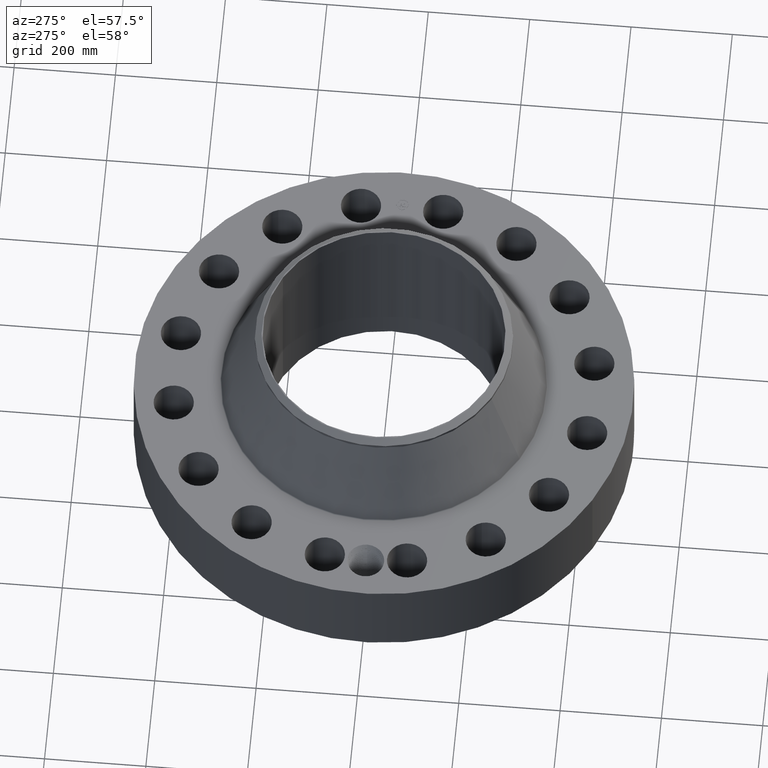
[diagram: clean part render]
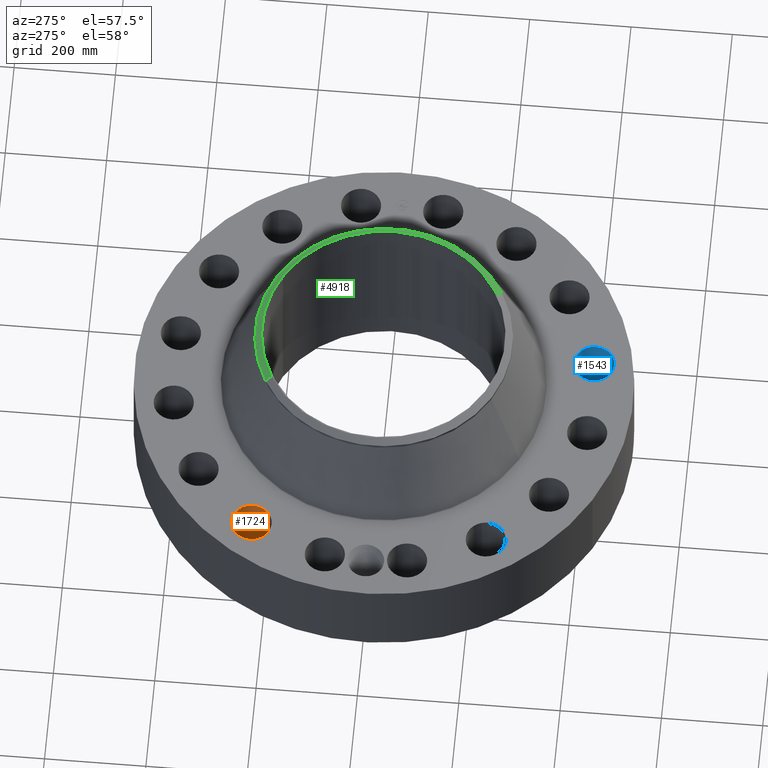
[diagram: same view with three faces highlighted in distinct colors, each labeled with its STEP entity id]
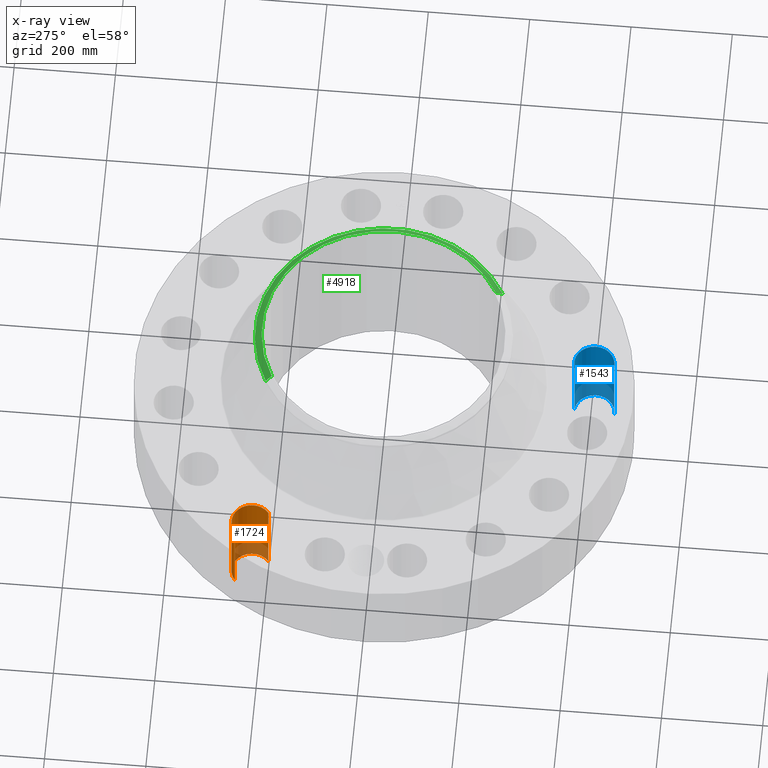
[diagram: x-ray of the same camera — body ghosted, the three highlighted faces saturated]
A machine part, auxiliary view with three faces highlighted in distinct colors.
The next image is the same camera in x-ray (body ghosted, the three faces saturated) — at least one of them is partly hidden behind the body in this view.
Their STEP definitions:

[orange] entity #1724 — the highlighted cylindrical surface (edge-blend (fillet) strip) has radius 39.624 mm, axis along (0, 0, -1).
#431=AXIS2_PLACEMENT_3D('Circle Axis2P3D',#429,#430,$) ;
#901=AXIS2_PLACEMENT_3D('Circle Axis2P3D',#899,#900,$) ;
#1699=AXIS2_PLACEMENT_3D('Cylinder Axis2P3D',#1696,#1697,#1698) ;
#424=CARTESIAN_POINT('Vertex',(-12.6367076256,7.88258487659,0.250000000001)) ;
#426=CARTESIAN_POINT('Vertex',(-14.5939221774,10.3123402549,0.250000000001)) ;
#429=CARTESIAN_POINT('Axis2P3D Location',(-13.6153149015,9.09746256573,0.250000000001)) ;
#899=CARTESIAN_POINT('Axis2P3D Location',(-13.6153149015,9.09746256573,7.25000000003)) ;
#903=CARTESIAN_POINT('Vertex',(-14.5939221774,10.3123402549,7.25000000003)) ;
#905=CARTESIAN_POINT('Vertex',(-12.6367076256,7.88258487659,7.25000000003)) ;
#1696=CARTESIAN_POINT('Axis2P3D Location',(-13.6153149015,9.09746256573,7.24606299215)) ;
#1701=CARTESIAN_POINT('Line Origine',(-12.6367076256,7.88258487659,3.75000000002)) ;
#1706=CARTESIAN_POINT('Line Origine',(-14.5939221774,10.3123402549,3.75000000002)) ;
#430=DIRECTION('Axis2P3D Direction',(0.,0.,-0.0393700787402)) ;
#900=DIRECTION('Axis2P3D Direction',(0.,0.,-0.0393700787402)) ;
#1697=DIRECTION('Axis2P3D Direction',(0.,0.,-0.0393700787402)) ;
#1698=DIRECTION('Axis2P3D XDirection',(-0.0246973368639,0.030660147616,0.)) ;
#1702=DIRECTION('Vector Direction',(0.,0.,-0.0393700787402)) ;
#1707=DIRECTION('Vector Direction',(0.,0.,-0.0393700787402)) ;
#1703=VECTOR('Line Direction',#1702,0.0393700787402) ;
#1708=VECTOR('Line Direction',#1707,0.0393700787402) ;
#1719=ORIENTED_EDGE('',*,*,#1710,.F.) ;
#1720=ORIENTED_EDGE('',*,*,#433,.T.) ;
#1721=ORIENTED_EDGE('',*,*,#1705,.T.) ;
#1722=ORIENTED_EDGE('',*,*,#907,.F.) ;
#1724=ADVANCED_FACE('PartBody',(#1723),#1700,.F.) ;
#432=CIRCLE('generated circle',#431,1.56000000001) ;
#902=CIRCLE('generated circle',#901,1.56000000001) ;
#1700=CYLINDRICAL_SURFACE('generated cylinder',#1699,1.56000000001) ;
#433=EDGE_CURVE('',#427,#425,#432,.T.) ;
#907=EDGE_CURVE('',#904,#906,#902,.T.) ;
#1705=EDGE_CURVE('',#425,#906,#1704,.F.) ;
#1710=EDGE_CURVE('',#427,#904,#1709,.F.) ;
#1718=EDGE_LOOP('',(#1719,#1720,#1721,#1722)) ;
#1723=FACE_OUTER_BOUND('',#1718,.T.) ;
#1704=LINE('Line',#1701,#1703) ;
#1709=LINE('Line',#1706,#1708) ;
#425=VERTEX_POINT('',#424) ;
#427=VERTEX_POINT('',#426) ;
#904=VERTEX_POINT('',#903) ;
#906=VERTEX_POINT('',#905) ;

[blue] entity #1543 — the highlighted cylindrical surface (edge-blend (fillet) strip) has radius 39.624 mm, axis along (0, -0, -1).
#314=AXIS2_PLACEMENT_3D('Circle Axis2P3D',#312,#313,$) ;
#802=AXIS2_PLACEMENT_3D('Circle Axis2P3D',#800,#801,$) ;
#1525=AXIS2_PLACEMENT_3D('Cylinder Axis2P3D',#1522,#1523,#1524) ;
#312=CARTESIAN_POINT('Axis2P3D Location',(3.19460402303,-16.0603589667,0.250000000001)) ;
#316=CARTESIAN_POINT('Vertex',(3.36167243443,-14.5093308735,0.250000000001)) ;
#318=CARTESIAN_POINT('Vertex',(3.02753561163,-17.6113870599,0.250000000001)) ;
#795=CARTESIAN_POINT('Vertex',(3.02753561163,-17.6113870599,7.25000000003)) ;
#797=CARTESIAN_POINT('Vertex',(3.36167243443,-14.5093308735,7.25000000003)) ;
#800=CARTESIAN_POINT('Axis2P3D Location',(3.19460402303,-16.0603589667,7.25000000003)) ;
#1522=CARTESIAN_POINT('Axis2P3D Location',(3.19460402303,-16.0603589667,7.24606299215)) ;
#1527=CARTESIAN_POINT('Line Origine',(3.36167243443,-14.5093308735,3.75000000002)) ;
#1532=CARTESIAN_POINT('Line Origine',(3.02753561163,-17.6113870599,3.75000000002)) ;
#313=DIRECTION('Axis2P3D Direction',(0.,0.,-0.0393700787402)) ;
#801=DIRECTION('Axis2P3D Direction',(0.,0.,-0.0393700787402)) ;
#1523=DIRECTION('Axis2P3D Direction',(0.,-0.,-0.0393700787402)) ;
#1524=DIRECTION('Axis2P3D XDirection',(-0.00421634391778,-0.0391436526652,0.)) ;
#1528=DIRECTION('Vector Direction',(0.,0.,-0.0393700787402)) ;
#1533=DIRECTION('Vector Direction',(0.,0.,-0.0393700787402)) ;
#1529=VECTOR('Line Direction',#1528,0.0393700787402) ;
#1534=VECTOR('Line Direction',#1533,0.0393700787402) ;
#1538=ORIENTED_EDGE('',*,*,#1531,.F.) ;
#1539=ORIENTED_EDGE('',*,*,#320,.T.) ;
#1540=ORIENTED_EDGE('',*,*,#1536,.T.) ;
#1541=ORIENTED_EDGE('',*,*,#804,.F.) ;
#1543=ADVANCED_FACE('PartBody',(#1542),#1526,.F.) ;
#315=CIRCLE('generated circle',#314,1.56000000001) ;
#803=CIRCLE('generated circle',#802,1.56000000001) ;
#1526=CYLINDRICAL_SURFACE('generated cylinder',#1525,1.56000000001) ;
#320=EDGE_CURVE('',#317,#319,#315,.T.) ;
#804=EDGE_CURVE('',#798,#796,#803,.T.) ;
#1531=EDGE_CURVE('',#317,#798,#1530,.F.) ;
#1536=EDGE_CURVE('',#319,#796,#1535,.F.) ;
#1537=EDGE_LOOP('',(#1538,#1539,#1540,#1541)) ;
#1542=FACE_OUTER_BOUND('',#1537,.T.) ;
#1530=LINE('Line',#1527,#1529) ;
#1535=LINE('Line',#1532,#1534) ;
#317=VERTEX_POINT('',#316) ;
#319=VERTEX_POINT('',#318) ;
#796=VERTEX_POINT('',#795) ;
#798=VERTEX_POINT('',#797) ;

[green] entity #4918 — the highlighted conical surface has half-angle 52.5 deg.
#3745=AXIS2_PLACEMENT_3D('Circle Axis2P3D',#3743,#3744,$) ;
#3772=AXIS2_PLACEMENT_3D('Circle Axis2P3D',#3770,#3771,$) ;
#4546=AXIS2_PLACEMENT_3D('Circle Axis2P3D',#4544,#4545,$) ;
#4899=AXIS2_PLACEMENT_3D('Cone Axis2P3D',#4896,#4897,#4898) ;
#3740=CARTESIAN_POINT('Vertex',(4.79425538606,8.77582561894,13.8546272171)) ;
#3743=CARTESIAN_POINT('Axis2P3D Location',(0.,0.,13.8546272171)) ;
#3747=CARTESIAN_POINT('Vertex',(4.79425538606,-8.77582561894,13.8546272171)) ;
#3767=CARTESIAN_POINT('Vertex',(-4.79425538606,8.77582561894,13.8546272171)) ;
#3770=CARTESIAN_POINT('Axis2P3D Location',(0.,0.,13.8546272171)) ;
#4544=CARTESIAN_POINT('Axis2P3D Location',(0.,0.,14.2500000001)) ;
#4548=CARTESIAN_POINT('Vertex',(4.54722665854,-8.3236425663,14.2500000001)) ;
#4550=CARTESIAN_POINT('Vertex',(-4.54722665854,8.3236425663,14.2500000001)) ;
#4896=CARTESIAN_POINT('Axis2P3D Location',(0.,0.,14.2500000001)) ;
#4901=CARTESIAN_POINT('Line Origine',(-4.6707410223,8.54973409262,14.0523136086)) ;
#4906=CARTESIAN_POINT('Line Origine',(4.6707410223,-8.54973409262,14.0523136086)) ;
#3744=DIRECTION('Axis2P3D Direction',(0.,0.,-0.0393700787402)) ;
#3771=DIRECTION('Axis2P3D Direction',(0.,0.,-0.0393700787402)) ;
#4545=DIRECTION('Axis2P3D Direction',(0.,0.,-0.0393700787402)) ;
#4897=DIRECTION('Axis2P3D Direction',(-0.,-0.,-0.0393700787402)) ;
#4898=DIRECTION('Axis2P3D XDirection',(0.0188750212049,-0.0345504945626,0.)) ;
#4902=DIRECTION('Vector Direction',(-0.014974561121,0.02741075027,-0.023966985394)) ;
#4907=DIRECTION('Vector Direction',(0.014974561121,-0.02741075027,-0.023966985394)) ;
#4903=VECTOR('Line Direction',#4902,0.0393700787402) ;
#4908=VECTOR('Line Direction',#4907,0.0393700787402) ;
#4912=ORIENTED_EDGE('',*,*,#4905,.F.) ;
#4913=ORIENTED_EDGE('',*,*,#4552,.F.) ;
#4914=ORIENTED_EDGE('',*,*,#4910,.T.) ;
#4915=ORIENTED_EDGE('',*,*,#3749,.T.) ;
#4916=ORIENTED_EDGE('',*,*,#3774,.F.) ;
#4918=ADVANCED_FACE('PartBody',(#4917),#4900,.T.) ;
#3746=CIRCLE('generated circle',#3745,10.) ;
#3773=CIRCLE('generated circle',#3772,10.) ;
#4547=CIRCLE('generated circle',#4546,9.48474015752) ;
#4900=CONICAL_SURFACE('Cone',#4899,9.48474015752,0.916297857297) ;
#3749=EDGE_CURVE('',#3748,#3741,#3746,.F.) ;
#3774=EDGE_CURVE('',#3768,#3741,#3773,.T.) ;
#4552=EDGE_CURVE('',#4549,#4551,#4547,.F.) ;
#4905=EDGE_CURVE('',#4551,#3768,#4904,.T.) ;
#4910=EDGE_CURVE('',#4549,#3748,#4909,.T.) ;
#4911=EDGE_LOOP('',(#4912,#4913,#4914,#4915,#4916)) ;
#4917=FACE_OUTER_BOUND('',#4911,.T.) ;
#4904=LINE('Line',#4901,#4903) ;
#4909=LINE('Line',#4906,#4908) ;
#3741=VERTEX_POINT('',#3740) ;
#3748=VERTEX_POINT('',#3747) ;
#3768=VERTEX_POINT('',#3767) ;
#4549=VERTEX_POINT('',#4548) ;
#4551=VERTEX_POINT('',#4550) ;